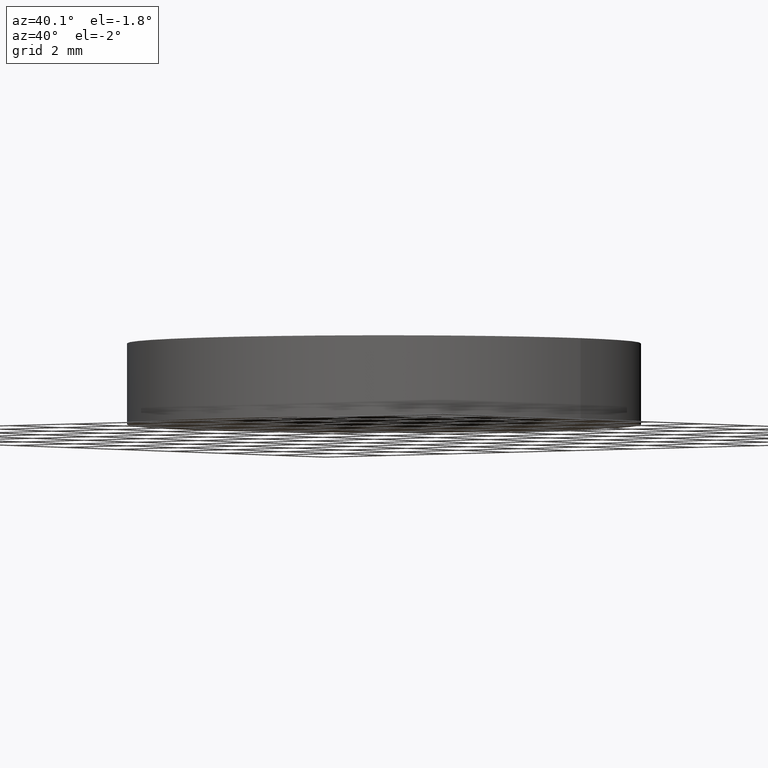
[diagram: clean part render]
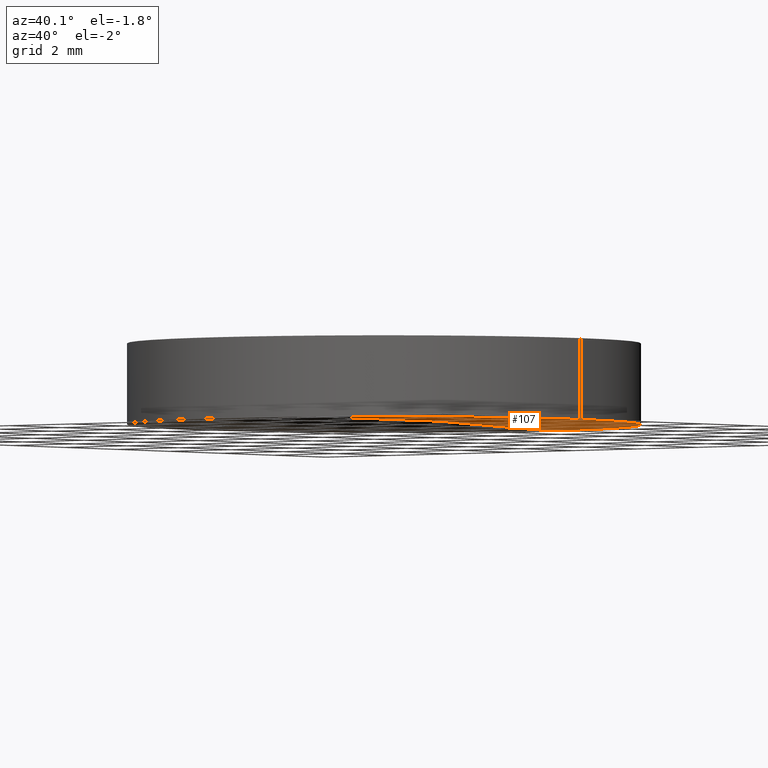
[diagram: same view with one face highlighted and labeled with its STEP entity id]
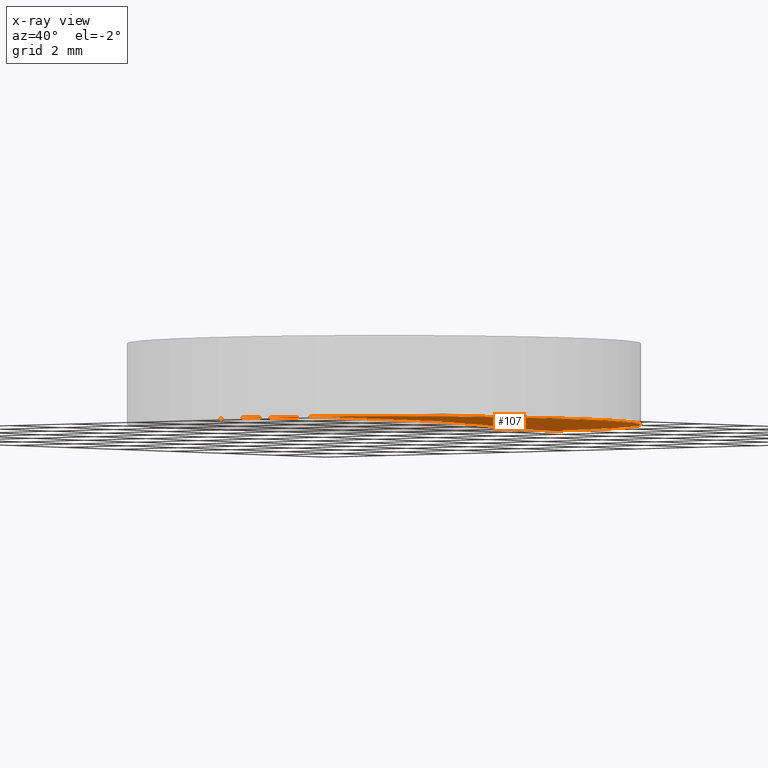
[diagram: x-ray of the same camera — body ghosted, the highlighted face saturated]
A machine part, auxiliary view. The second image highlights one B-rep face of the part: STEP entity #107.
The next image is the same camera in x-ray: the body ghosted, the highlighted face saturated — about 0% of this face is hidden behind the body in this view.
In plain terms, the highlighted face is a freeform B-spline surface patch.
Its self-contained STEP definition (entity closure, byte-faithful):
#6 = CARTESIAN_POINT ( 'NONE',  ( 1.321838206735357900E-014, 6.426138242948616700, -0.1589250380199802600 ) ) ;
#28 = CARTESIAN_POINT ( 'NONE',  ( 4.261951656520520400, -2.143793272918276500, 0.0006374862197369046000 ) ) ;
#29 = CARTESIAN_POINT ( 'NONE',  ( 6.390674658232266700, 2.143793272918288900, -0.1040923423541564200 ) ) ;
#31 = EDGE_CURVE ( 'NONE', #225, #63, #181, .T. ) ;
#40 = FACE_OUTER_BOUND ( 'NONE', #169, .T. ) ;
#43 = CARTESIAN_POINT ( 'NONE',  ( 2.498001805406600200E-016, 1.221245327087670000E-015, -0.1551791560402660000 ) ) ;
#47 = CARTESIAN_POINT ( 'NONE',  ( 4.255006089683576900, -6.426138242948602500, -0.2112204111180585900 ) ) ;
#60 = DIRECTION ( 'NONE',  ( 2.235275075987079100E-016, 1.000000000000000000, 0.0000000000000000000 ) ) ;
#63 = VERTEX_POINT ( 'NONE', #209 ) ;
#64 = CARTESIAN_POINT ( 'NONE',  ( 6.380259979336506700, -6.426138242948603400, -0.3157795648268181300 ) ) ;
#85 = EDGE_CURVE ( 'NONE', #98, #225, #279, .T. ) ;
#88 = DIRECTION ( 'NONE',  ( 1.000000000000000000, 0.0000000000000000000, 0.0000000000000000000 ) ) ;
#92 = CARTESIAN_POINT ( 'NONE',  ( 1.234998254251787300E-014, 2.143793272918290200, 0.05301822253503708100 ) ) ;
#93 = CARTESIAN_POINT ( 'NONE',  ( 2.127824408194727700, -6.426138242948602500, -0.1589250380199811500 ) ) ;
#98 = VERTEX_POINT ( 'NONE', #242 ) ;
#99 =( BOUNDED_SURFACE ( )  B_SPLINE_SURFACE ( 3, 3, ( 
 ( #6, #282, #194, #168 ),
 ( #92, #218, #238, #29 ),
 ( #192, #244, #28, #144 ),
 ( #215, #93, #47, #64 ) ),
 .UNSPECIFIED., .F., .F., .F. ) 
 B_SPLINE_SURFACE_WITH_KNOTS ( ( 4, 4 ),
 ( 4, 4 ),
 ( 0.0000000000000000000, 1.000000000000000000 ),
 ( 0.0000000000000000000, 1.000000000000000000 ),
 .UNSPECIFIED. ) 
 GEOMETRIC_REPRESENTATION_ITEM ( )  RATIONAL_B_SPLINE_SURFACE ( (
 ( 1.000000000000000000, 0.9997986278994978000, 0.9997986278994978000, 1.000000000000000000),
 ( 0.9991849998050256200, 0.9989837918228246000, 0.9989837918228246000, 0.9991849998050256200),
 ( 0.9991849998050256200, 0.9989837918228246000, 0.9989837918228246000, 0.9991849998050256200),
 ( 1.000000000000000000, 0.9997986278994978000, 0.9997986278994978000, 1.000000000000000000) ) ) 
 REPRESENTATION_ITEM ( '' )  SURFACE ( )  );
#105 = AXIS2_PLACEMENT_3D ( 'NONE', #157, #199, #60 ) ;
#107 = ADVANCED_FACE ( 'NONE', ( #40 ), #99, .F. ) ;
#121 = ORIENTED_EDGE ( 'NONE', *, *, #85, .F. ) ;
#134 = DIRECTION ( 'NONE',  ( 0.0000000000000000000, 0.0000000000000000000, 1.000000000000000000 ) ) ;
#143 = CARTESIAN_POINT ( 'NONE',  ( 2.498001805406600200E-016, 1.221245327087670000E-015, -0.1551791560402660000 ) ) ;
#144 = CARTESIAN_POINT ( 'NONE',  ( 6.390674658232265800, -2.143793272918276900, -0.1040923423541559900 ) ) ;
#157 = CARTESIAN_POINT ( 'NONE',  ( -4.263256414560599900E-014, 1.421085471520200100E-014, -130.0000000000000000 ) ) ;
#158 = CIRCLE ( 'NONE', #105, 130.0000000000000000 ) ;
#168 = CARTESIAN_POINT ( 'NONE',  ( 6.380259979336509300, 6.426138242948614900, -0.3157795648268181300 ) ) ;
#169 = EDGE_LOOP ( 'NONE', ( #276, #178, #121 ) ) ;
#176 = CARTESIAN_POINT ( 'NONE',  ( 6.349999999999999600, 1.221245327087670000E-015, -0.1551791560402660000 ) ) ;
#178 = ORIENTED_EDGE ( 'NONE', *, *, #31, .F. ) ;
#181 = CIRCLE ( 'NONE', #237, 6.349999999999999600 ) ;
#189 = DIRECTION ( 'NONE',  ( 0.0000000000000000000, 0.0000000000000000000, 1.000000000000000000 ) ) ;
#190 = EDGE_CURVE ( 'NONE', #63, #98, #158, .T. ) ;
#192 = CARTESIAN_POINT ( 'NONE',  ( 1.139158900831328000E-014, -2.143793272918275600, 0.05301822253503751100 ) ) ;
#194 = CARTESIAN_POINT ( 'NONE',  ( 4.255006089683580400, 6.426138242948614900, -0.2112204111180586200 ) ) ;
#199 = DIRECTION ( 'NONE',  ( 1.000000000000000000, -2.235275075987080100E-016, -4.190856211253810000E-016 ) ) ;
#209 = CARTESIAN_POINT ( 'NONE',  ( 1.320293292095049300E-014, 6.350000000000090200, -0.1551791560402676400 ) ) ;
#215 = CARTESIAN_POINT ( 'NONE',  ( 1.034554473749150200E-014, -6.426138242948601600, -0.1589250380199802600 ) ) ;
#218 = CARTESIAN_POINT ( 'NONE',  ( 2.131297716183695000, 2.143793272918288900, 0.05301822253503619300 ) ) ;
#225 = VERTEX_POINT ( 'NONE', #176 ) ;
#237 = AXIS2_PLACEMENT_3D ( 'NONE', #43, #134, #259 ) ;
#238 = CARTESIAN_POINT ( 'NONE',  ( 4.261951656520521300, 2.143793272918288500, 0.0006374862197364708100 ) ) ;
#242 = CARTESIAN_POINT ( 'NONE',  ( 1.036413357444686600E-014, -6.350000000000074300, -0.1551791560402676400 ) ) ;
#244 = CARTESIAN_POINT ( 'NONE',  ( 2.131297716183694100, -2.143793272918276000, 0.05301822253503663000 ) ) ;
#259 = DIRECTION ( 'NONE',  ( 1.000000000000000000, 0.0000000000000000000, 0.0000000000000000000 ) ) ;
#276 = ORIENTED_EDGE ( 'NONE', *, *, #190, .F. ) ;
#279 = CIRCLE ( 'NONE', #290, 6.349999999999999600 ) ;
#282 = CARTESIAN_POINT ( 'NONE',  ( 2.127824408194730400, 6.426138242948614900, -0.1589250380199811500 ) ) ;
#290 = AXIS2_PLACEMENT_3D ( 'NONE', #143, #189, #88 ) ;